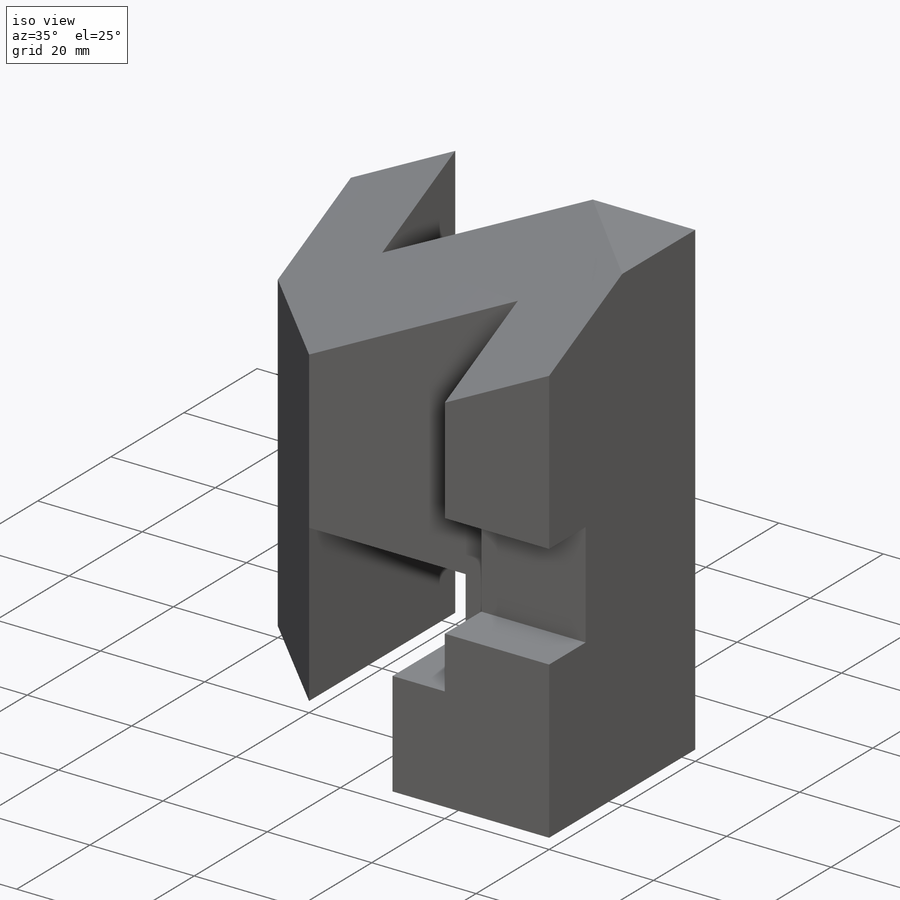
[diagram: iso view]
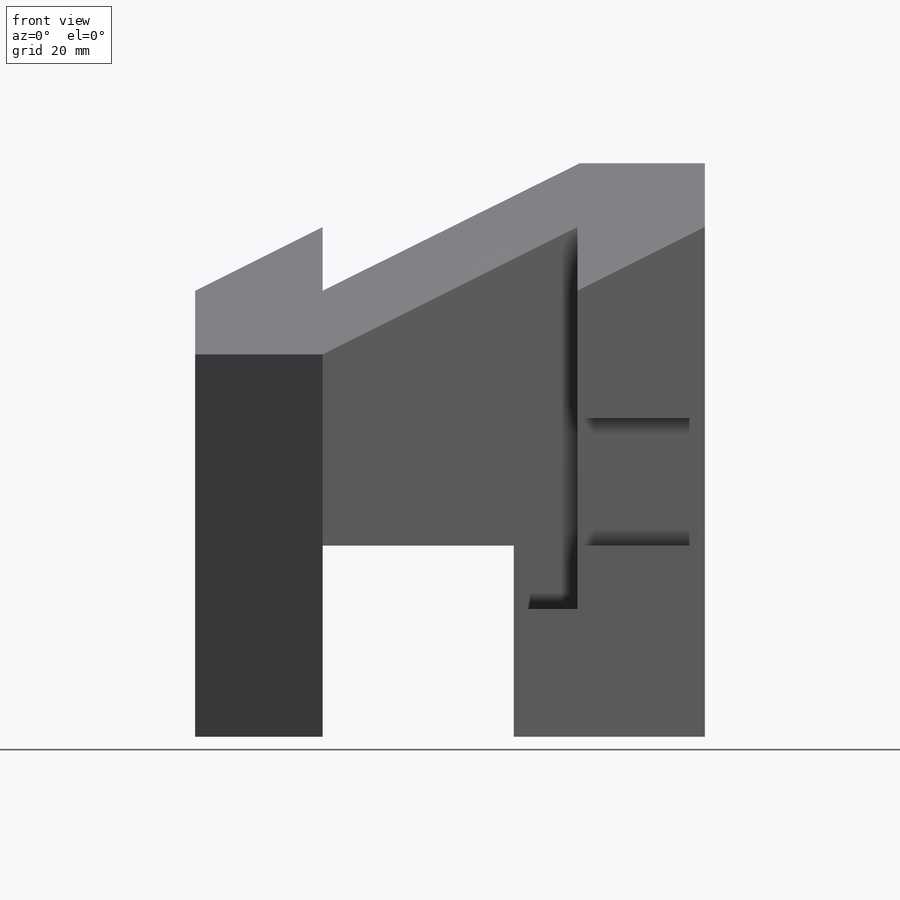
[diagram: front view]
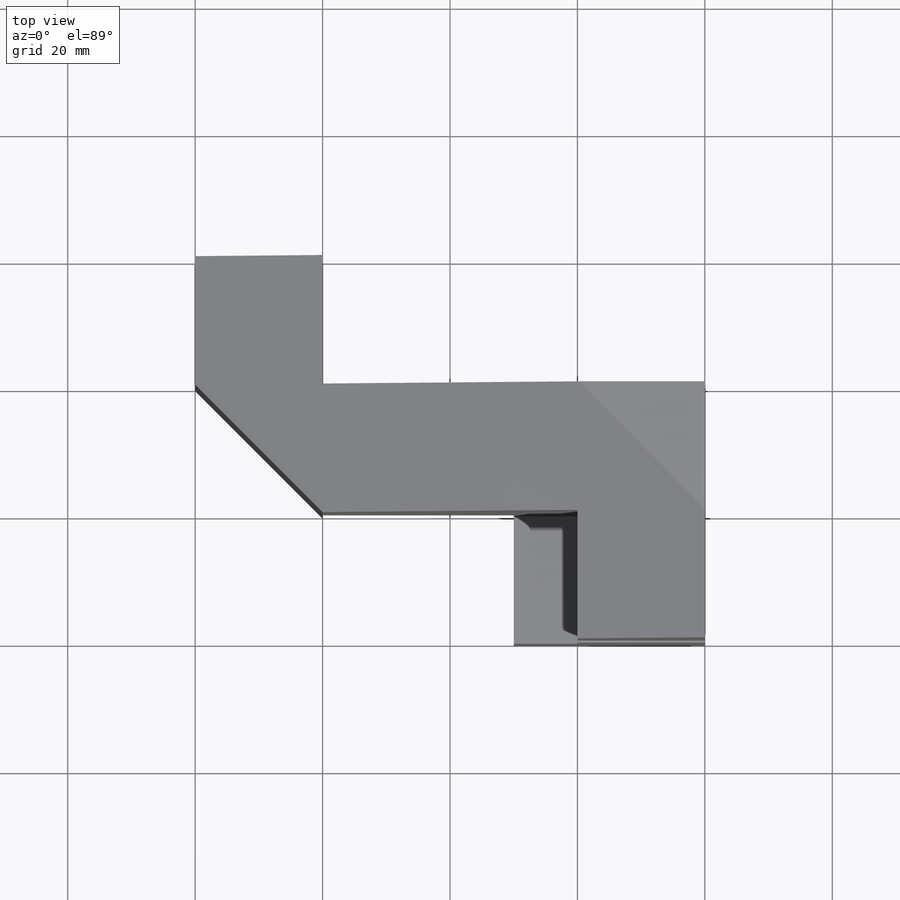
[diagram: top view]
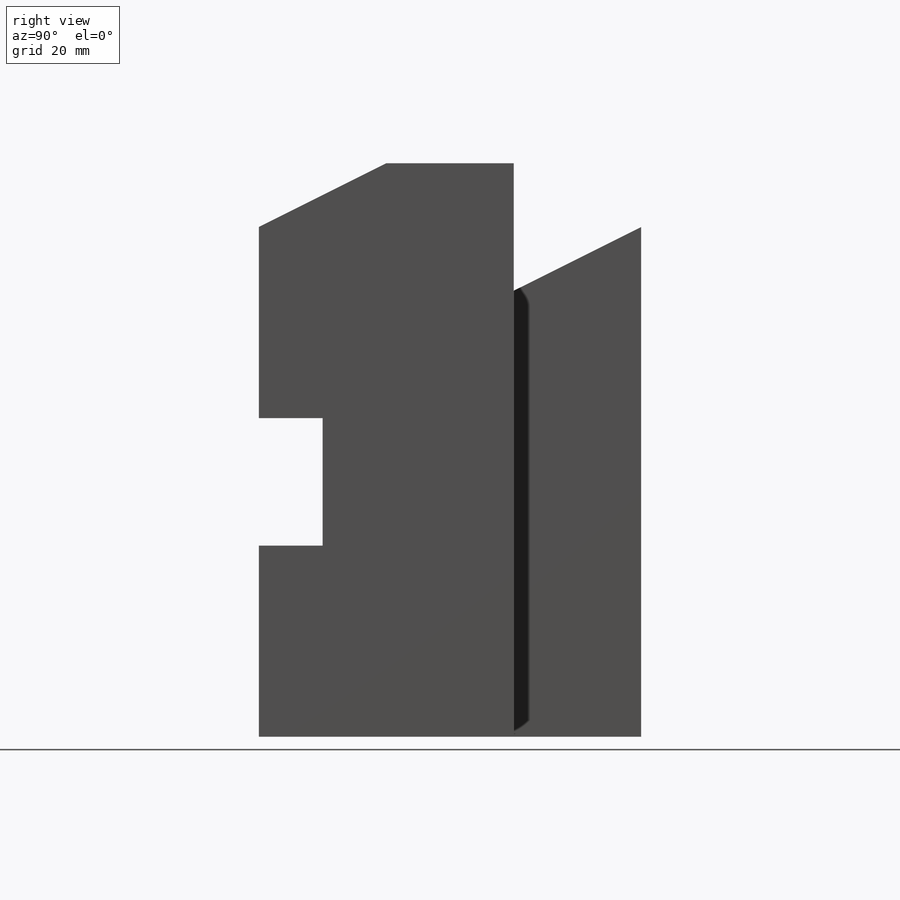
[diagram: right view]
SOLIDWORKS PART (.sldprt)
format: sldprt  version: not decoded by parser v0  size: 251,392 bytes
history: native  units: mm
features: sketch x12, cut_extrude x4, material x1, extrude x1 (+13 scaffold rows collapsed)
feature tree (31):
  scaffold x13  (default folders/planes/origin — collapsed)
  material  "Material <not specified>"
  sketch  "Sketch1"  dims[D1=40.0mm D2=20.0mm D3=20.0mm D4=60.0mm D5=40.0mm D6=30.0mm D7=30.0mm]
  extrude  "Boss-Extrude1"  Depth=90mm
  sketch  "Sketch2"  dims[D1=30.0mm]
  cut_extrude  "Cut-Extrude1"  [1 undecoded]
  sketch  "Sketch3"  dims[D1=20.0mm D2=10.0mm D3=30.0mm]
  cut_extrude  "Cut-Extrude2"  Depth=90mm
  sketch  "Sketch4"  dims[D1=20.0mm D2=10.0mm]
  cut_extrude  "Cut-Extrude3"  Depth=70mm
  sketch  "Sketch5"  dims[D1=60.0mm D2=60.0mm]
  sketch  "Sketch6"  dims[D1=70.0mm]
  sketch  "Sketch7"  dims[D1=10.0mm]
  sketch  "Sketch8"  dims[D1=10.0mm]
  sketch  "Sketch9"  dims[D1=20.0mm]
  sketch  "Sketch10"  dims[D1=20.0mm D2=20.0mm D3=10.0mm]
  sketch  "Sketch11"  dims[D1=20.0mm D2=10.0mm]
  sketch  "3DSketch1"
  cut_extrude  "Cut-Extrude4"  Depth=80mm
decode coverage: 15 of 17 modeling features carry decoded parameters
note: 1 parameter value undecoded
note: suppression state not decoded; provenance and decode notes live in map.json
